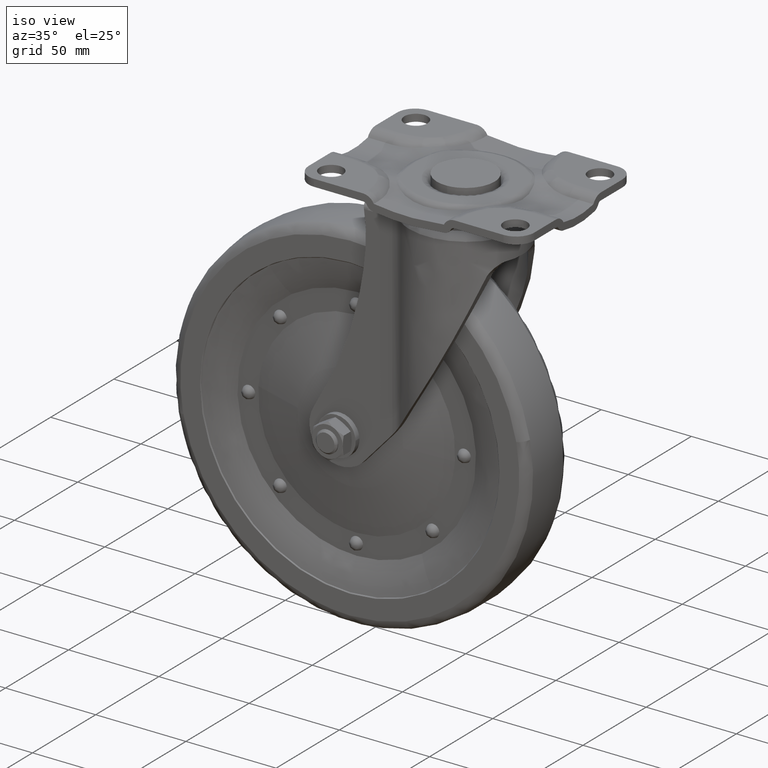
[diagram: clean part render]
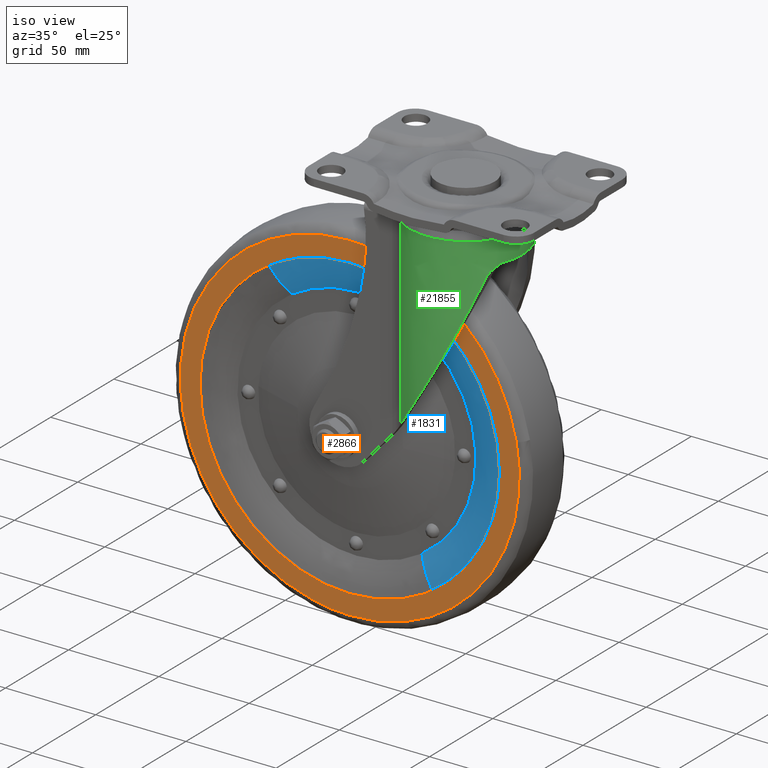
[diagram: same view with three faces highlighted in distinct colors, each labeled with its STEP entity id]
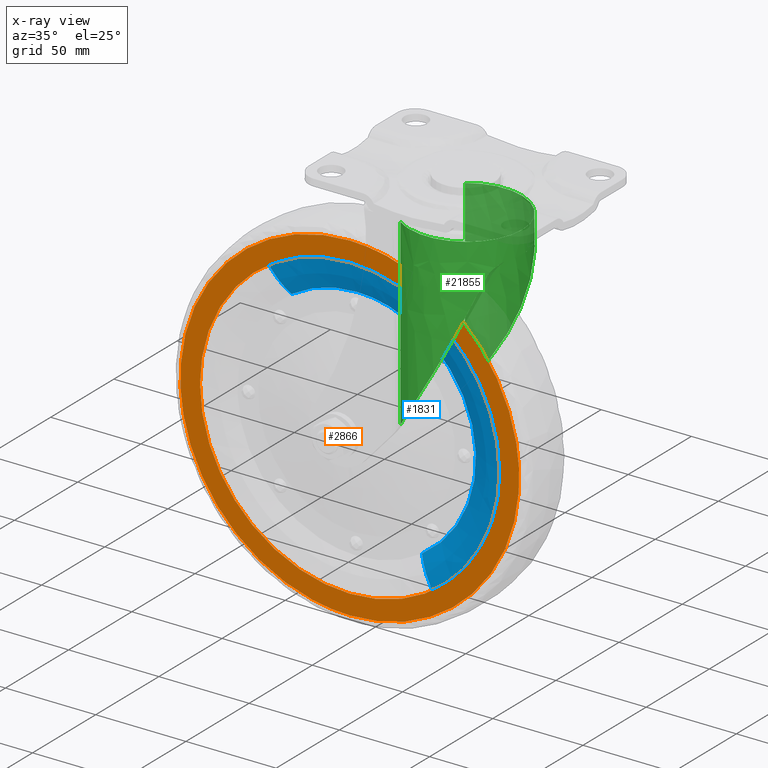
[diagram: x-ray of the same camera — body ghosted, the three highlighted faces saturated]
A machine part, iso view with three faces highlighted in distinct colors.
The next image is the same camera in x-ray (body ghosted, the three faces saturated) — at least one of them is partly hidden behind the body in this view.
Their STEP definitions:

[orange] entity #2866 — the highlighted face is a freeform B-spline surface patch.
#2141=CARTESIAN_POINT('',(29.999999987765751,-16.0,-135.729232999999990));
#2142=VERTEX_POINT('',#2141);
#2156=CARTESIAN_POINT('',(-53.0,-16.0,-52.729233000000001));
#2157=VERTEX_POINT('',#2156);
#2158=CARTESIAN_POINT('',(29.999999987765751,-16.0,-135.729232999999990));
#2159=CARTESIAN_POINT('',(29.999999993882902,-16.000000000000004,-52.729232999999979));
#2160=CARTESIAN_POINT('',(-53.0,-16.0,-52.729233000000001));
#2168=(BOUNDED_CURVE()B_SPLINE_CURVE(2,(#2158,#2159,#2160),.UNSPECIFIED.,.F.,.U.)B_SPLINE_CURVE_WITH_KNOTS((3,3),(0.250000000000000,0.500000000000000),.UNSPECIFIED.)CURVE()GEOMETRIC_REPRESENTATION_ITEM()RATIONAL_B_SPLINE_CURVE((1.0,0.707106781186547,1.0))REPRESENTATION_ITEM(''));
#2169=EDGE_CURVE('',#2142,#2157,#2168,.T.);
#2171=CARTESIAN_POINT('',(-135.999999987765790,-16.0,-135.729232999999990));
#2172=VERTEX_POINT('',#2171);
#2173=CARTESIAN_POINT('',(-53.0,-16.0,-52.729233000000001));
#2174=CARTESIAN_POINT('',(-135.999999993882940,-16.000000000000004,-52.729233000000008));
#2175=CARTESIAN_POINT('',(-135.999999987765790,-16.000000000000011,-135.729233000000110));
#2183=(BOUNDED_CURVE()B_SPLINE_CURVE(2,(#2173,#2174,#2175),.UNSPECIFIED.,.F.,.U.)B_SPLINE_CURVE_WITH_KNOTS((3,3),(0.500000000000000,0.750000000000000),.UNSPECIFIED.)CURVE()GEOMETRIC_REPRESENTATION_ITEM()RATIONAL_B_SPLINE_CURVE((1.0,0.707106781186547,1.0))REPRESENTATION_ITEM(''));
#2184=EDGE_CURVE('',#2157,#2172,#2183,.T.);
#2237=CARTESIAN_POINT('',(-53.0,-16.0,-218.729232999999990));
#2238=VERTEX_POINT('',#2237);
#2239=CARTESIAN_POINT('',(-135.999999987765730,-16.000000000000004,-135.729233000000020));
#2240=CARTESIAN_POINT('',(-135.999999993882820,-15.999999999999998,-218.729233000000050));
#2241=CARTESIAN_POINT('',(-53.0,-16.0,-218.729232999999990));
#2249=(BOUNDED_CURVE()B_SPLINE_CURVE(2,(#2239,#2240,#2241),.UNSPECIFIED.,.F.,.U.)B_SPLINE_CURVE_WITH_KNOTS((3,3),(0.750000000000000,1.0),.UNSPECIFIED.)CURVE()GEOMETRIC_REPRESENTATION_ITEM()RATIONAL_B_SPLINE_CURVE((1.000000000000000,0.707106781186548,1.0))REPRESENTATION_ITEM(''));
#2250=EDGE_CURVE('',#2172,#2238,#2249,.T.);
#2252=CARTESIAN_POINT('',(-53.0,-16.0,-218.729232999999990));
#2253=CARTESIAN_POINT('',(29.999999993882852,-15.999999999999998,-218.729233000000050));
#2254=CARTESIAN_POINT('',(29.999999987765747,-16.000000000000004,-135.729233000000020));
#2262=(BOUNDED_CURVE()B_SPLINE_CURVE(2,(#2252,#2253,#2254),.UNSPECIFIED.,.F.,.U.)B_SPLINE_CURVE_WITH_KNOTS((3,3),(0.0,0.250000000000000),.UNSPECIFIED.)CURVE()GEOMETRIC_REPRESENTATION_ITEM()RATIONAL_B_SPLINE_CURVE((1.0,0.707106781186548,1.000000000000000))REPRESENTATION_ITEM(''));
#2263=EDGE_CURVE('',#2238,#2142,#2262,.T.);
#2789=CARTESIAN_POINT('',(-156.260109342096910,-16.0,-32.460969741449127));
#2790=CARTESIAN_POINT('',(-156.260109342096910,-16.0,-238.997501295137310));
#2791=CARTESIAN_POINT('',(50.260114378285621,-16.0,-32.460969741449127));
#2792=CARTESIAN_POINT('',(50.260114378285621,-16.0,-238.997501295137310));
#2793=B_SPLINE_SURFACE_WITH_KNOTS('',1,1,((#2789,#2791),(#2790,#2792)),.UNSPECIFIED.,.F.,.F.,.U.,(2,2),(2,2),(0.0,206.536531553688090),(0.0,206.520223720382490),.UNSPECIFIED.);
#2794=CARTESIAN_POINT('',(-53.0,-15.999999999999959,-229.618008000000200));
#2795=VERTEX_POINT('',#2794);
#2796=CARTESIAN_POINT('',(39.225746698344203,-15.999999999999970,-118.136230909207600));
#2797=VERTEX_POINT('',#2796);
#2798=CARTESIAN_POINT('',(-53.0,-15.999999999999959,-229.618008000000200));
#2799=CARTESIAN_POINT('',(40.888775012188987,-15.999999999999970,-229.618007997674990));
#2800=CARTESIAN_POINT('',(40.888775026922737,-15.999999999999970,-135.729232994864300));
#2801=CARTESIAN_POINT('',(40.888775028315493,-15.999999999999975,-126.854130721343780));
#2802=CARTESIAN_POINT('',(39.225746698344203,-15.999999999999972,-118.136230909207650));
#2810=(BOUNDED_CURVE()B_SPLINE_CURVE(2,(#2798,#2799,#2800,#2801,#2802),.UNSPECIFIED.,.F.,.U.)B_SPLINE_CURVE_WITH_KNOTS((3,2,3),(0.0,0.250000000000000,0.282161366261022),.UNSPECIFIED.)CURVE()GEOMETRIC_REPRESENTATION_ITEM()RATIONAL_B_SPLINE_CURVE((1.0,0.707106781186548,1.0,0.962320615657484,0.934335795157604))REPRESENTATION_ITEM(''));
#2811=EDGE_CURVE('',#2795,#2797,#2810,.T.);
#2812=ORIENTED_EDGE('',*,*,#2811,.T.);
#2813=CARTESIAN_POINT('',(-53.0,-16.0,-41.840457999999813));
#2814=VERTEX_POINT('',#2813);
#2815=CARTESIAN_POINT('',(39.225746698344203,-15.999999999999972,-118.136230909207650));
#2816=CARTESIAN_POINT('',(24.671549613246064,-15.999999999999988,-41.840457997189226));
#2817=CARTESIAN_POINT('',(-53.0,-16.0,-41.840457999999813));
#2825=(BOUNDED_CURVE()B_SPLINE_CURVE(2,(#2815,#2816,#2817),.UNSPECIFIED.,.F.,.U.)B_SPLINE_CURVE_WITH_KNOTS((3,3),(0.282161366261022,0.500000000000000),.UNSPECIFIED.)CURVE()GEOMETRIC_REPRESENTATION_ITEM()RATIONAL_B_SPLINE_CURVE((0.934335795157604,0.744786165529064,1.0))REPRESENTATION_ITEM(''));
#2826=EDGE_CURVE('',#2797,#2814,#2825,.T.);
#2827=ORIENTED_EDGE('',*,*,#2826,.T.);
#2828=CARTESIAN_POINT('',(-145.225746698344210,-15.999999999999970,-153.322235090792300));
#2829=VERTEX_POINT('',#2828);
#2830=CARTESIAN_POINT('',(-53.0,-16.0,-41.840457999999813));
#2831=CARTESIAN_POINT('',(-146.888775012188940,-15.999999999999986,-41.840458002324965));
#2832=CARTESIAN_POINT('',(-146.888775026922700,-15.999999999999980,-135.729233005135710));
#2833=CARTESIAN_POINT('',(-146.888775028315450,-15.999999999999973,-144.604335278656120));
#2834=CARTESIAN_POINT('',(-145.225746698344210,-15.999999999999970,-153.322235090792330));
#2842=(BOUNDED_CURVE()B_SPLINE_CURVE(2,(#2830,#2831,#2832,#2833,#2834),.UNSPECIFIED.,.F.,.U.)B_SPLINE_CURVE_WITH_KNOTS((3,2,3),(0.500000000000000,0.750000000000000,0.782161366261022),.UNSPECIFIED.)CURVE()GEOMETRIC_REPRESENTATION_ITEM()RATIONAL_B_SPLINE_CURVE((1.0,0.707106781186548,1.0,0.962320615657484,0.934335795157604))REPRESENTATION_ITEM(''));
#2843=EDGE_CURVE('',#2814,#2829,#2842,.T.);
#2844=ORIENTED_EDGE('',*,*,#2843,.T.);
#2845=CARTESIAN_POINT('',(-145.225746698344210,-15.999999999999970,-153.322235090792330));
#2846=CARTESIAN_POINT('',(-130.671549613246100,-15.999999999999964,-229.618008002810830));
#2847=CARTESIAN_POINT('',(-53.0,-15.999999999999959,-229.618008000000200));
#2855=(BOUNDED_CURVE()B_SPLINE_CURVE(2,(#2845,#2846,#2847),.UNSPECIFIED.,.F.,.U.)B_SPLINE_CURVE_WITH_KNOTS((3,3),(0.782161366261022,1.0),.UNSPECIFIED.)CURVE()GEOMETRIC_REPRESENTATION_ITEM()RATIONAL_B_SPLINE_CURVE((0.934335795157604,0.744786165529064,1.0))REPRESENTATION_ITEM(''));
#2856=EDGE_CURVE('',#2829,#2795,#2855,.T.);
#2857=ORIENTED_EDGE('',*,*,#2856,.T.);
#2858=EDGE_LOOP('',(#2812,#2827,#2844,#2857));
#2859=FACE_OUTER_BOUND('',#2858,.T.);
#2860=ORIENTED_EDGE('',*,*,#2184,.F.);
#2861=ORIENTED_EDGE('',*,*,#2169,.F.);
#2862=ORIENTED_EDGE('',*,*,#2263,.F.);
#2863=ORIENTED_EDGE('',*,*,#2250,.F.);
#2864=EDGE_LOOP('',(#2860,#2861,#2862,#2863));
#2865=FACE_BOUND('',#2864,.T.);
#2866=ADVANCED_FACE('',(#2859,#2865),#2793,.T.);

[blue] entity #1831 — the highlighted face is a freeform B-spline surface patch.
#1403=CARTESIAN_POINT('',(-16.883060482848801,-10.500000000488191,-191.090255211322300));
#1404=VERTEX_POINT('',#1403);
#1418=CARTESIAN_POINT('',(-53.0,-10.500000000000000,-69.628732999999997));
#1419=VERTEX_POINT('',#1418);
#1420=CARTESIAN_POINT('',(-16.883060482848801,-10.500000000488191,-191.090255211322300));
#1421=CARTESIAN_POINT('',(-14.295893335492490,-10.500000000484739,-189.402585787430810));
#1422=CARTESIAN_POINT('',(-9.711550189356293,-10.500000000477140,-185.930599746245800));
#1423=CARTESIAN_POINT('',(-3.415545765390144,-10.500000000460849,-179.723098252272990));
#1424=CARTESIAN_POINT('',(2.433085217757083,-10.500000000439830,-172.223042368542110));
#1425=CARTESIAN_POINT('',(7.003315996075366,-10.500000000414330,-163.996032057710210));
#1426=CARTESIAN_POINT('',(10.271632505231000,-10.500000000386320,-155.426323502500200));
#1427=CARTESIAN_POINT('',(12.044561114156190,-10.500000000361689,-148.234531981813490));
#1428=CARTESIAN_POINT('',(13.044050193726889,-10.500000000334900,-140.680602007588500));
#1429=CARTESIAN_POINT('',(13.239785672960201,-10.500000000304921,-132.503289738344390));
#1430=CARTESIAN_POINT('',(12.289656787610260,-10.500000000273831,-124.370436119956810));
#1431=CARTESIAN_POINT('',(10.303118185413330,-10.500000000241650,-116.216102636709390));
#1432=CARTESIAN_POINT('',(7.675452905612581,-10.500000000212260,-109.053425288715200));
#1433=CARTESIAN_POINT('',(3.445397885427771,-10.500000000177209,-100.913810548366700));
#1434=CARTESIAN_POINT('',(-1.695309853666389,-10.500000000146059,-93.705090165029489));
#1435=CARTESIAN_POINT('',(-7.175670970250584,-10.500000000116300,-87.935669525866942));
#1436=CARTESIAN_POINT('',(-13.282683744497630,-10.500000000093049,-82.675849684003978));
#1437=CARTESIAN_POINT('',(-21.109858388971730,-10.500000000062981,-77.453837666754367));
#1438=CARTESIAN_POINT('',(-30.331973272559171,-10.500000000039069,-73.384665855382607));
#1439=CARTESIAN_POINT('',(-41.085831134377138,-10.500000000015900,-70.404188461576354));
#1440=CARTESIAN_POINT('',(-48.256203109829599,-10.500000000005221,-69.627839136742224));
#1441=CARTESIAN_POINT('',(-53.0,-10.500000000000000,-69.628732999999997));
#1442=B_SPLINE_CURVE_WITH_KNOTS('',3,(#1420,#1421,#1422,#1423,#1424,#1425,#1426,#1427,#1428,#1429,#1430,#1431,#1432,#1433,#1434,#1435,#1436,#1437,#1438,#1439,#1440,#1441),.UNSPECIFIED.,.F.,.U.,(4,1,1,1,1,1,1,1,1,1,1,1,1,1,1,1,1,1,1,4),(0.000000268252762,9.266858861553970,17.209927977640351,26.476791143593260,37.729510923627032,45.341609818290713,53.946499584197937,59.903874102659763,68.177718326411878,78.437418652294525,84.394635459403602,93.330577293487195,101.273641577468100,111.864399715827300,119.807468497358200,125.102846783829800,136.024563524854100,147.939095825421500,155.220281740602590,169.451426680902390),.UNSPECIFIED.);
#1443=EDGE_CURVE('',#1404,#1419,#1442,.T.);
#1445=CARTESIAN_POINT('',(-89.116939517151209,-10.500000000488191,-80.368210788677686));
#1446=VERTEX_POINT('',#1445);
#1447=CARTESIAN_POINT('',(-53.0,-10.500000000000000,-69.628732999999997));
#1448=CARTESIAN_POINT('',(-72.655177352478418,-10.500000000244095,-69.628732999625981));
#1449=CARTESIAN_POINT('',(-89.116939517151209,-10.500000000488189,-80.368210788677686));
#1457=(BOUNDED_CURVE()B_SPLINE_CURVE(2,(#1447,#1448,#1449),.UNSPECIFIED.,.F.,.U.)B_SPLINE_CURVE_WITH_KNOTS((3,3),(0.500000000000000,0.593601467030247),.UNSPECIFIED.)CURVE()GEOMETRIC_REPRESENTATION_ITEM()RATIONAL_B_SPLINE_CURVE((1.0,0.890339060143398,0.862793519058746))REPRESENTATION_ITEM(''));
#1458=EDGE_CURVE('',#1419,#1446,#1457,.T.);
#1725=CARTESIAN_POINT('',(-9.408239121956996,-15.569635847041310,-206.812674728074770));
#1726=CARTESIAN_POINT('',(-8.438089456810506,-15.569635847041313,-206.179759449804750));
#1727=CARTESIAN_POINT('',(62.353622326473094,-15.569635847041306,-159.996002889150870));
#1728=CARTESIAN_POINT('',(16.810196107811997,-15.569635847041305,-90.185806781338883));
#1729=CARTESIAN_POINT('',(-28.733230110849181,-15.569635847041306,-20.375610673526896));
#1730=CARTESIAN_POINT('',(-99.524941894448631,-15.569635847041308,-66.559367234386912));
#1731=CARTESIAN_POINT('',(-100.495091559903760,-15.569635847041308,-67.192282512858270));
#1732=CARTESIAN_POINT('',(-14.442448131109963,-14.881530613194037,-198.603579808733630));
#1733=CARTESIAN_POINT('',(-13.584336522837811,-14.881530613194045,-198.043756961962690));
#1734=CARTESIAN_POINT('',(49.031970870845349,-14.881530613194039,-157.193546894294680));
#1735=CARTESIAN_POINT('',(8.748142382570078,-14.881530613194037,-95.445404511724718));
#1736=CARTESIAN_POINT('',(-31.535686105705267,-14.881530613194039,-33.697262129154645));
#1737=CARTESIAN_POINT('',(-94.151993499667810,-14.881530613194034,-74.547472197004865));
#1738=CARTESIAN_POINT('',(-95.010105108212940,-14.881530613194036,-75.107295043953982));
#1739=CARTESIAN_POINT('',(-18.821115197945918,-10.082133639520013,-191.463452430928070));
#1740=CARTESIAN_POINT('',(-18.060452334645635,-10.082133639520013,-190.967204104415830));
#1741=CARTESIAN_POINT('',(37.445031115549163,-10.082133639520011,-154.756019618684380));
#1742=CARTESIAN_POINT('',(1.735908867116841,-10.082133639520015,-100.020110751567690));
#1743=CARTESIAN_POINT('',(-33.973213381315546,-10.082133639520011,-45.284201884450823));
#1744=CARTESIAN_POINT('',(-89.478696831758029,-10.082133639520013,-81.495386370343738));
#1745=CARTESIAN_POINT('',(-90.239359695300294,-10.082133639520013,-81.991634697013836));
#1753=(BOUNDED_SURFACE()B_SPLINE_SURFACE(2,2,((#1725,#1732,#1739),(#1726,#1733,#1740),(#1727,#1734,#1741),(#1728,#1735,#1742),(#1729,#1736,#1743),(#1730,#1737,#1744),(#1731,#1738,#1745)),.UNSPECIFIED.,.F.,.F.,.U.)B_SPLINE_SURFACE_WITH_KNOTS((3,1,2,1,3),(3,3),(0.0,2.762064421441989,140.865285506797900,278.968506592153690,281.730571014490010),(0.0,19.062550185073370),.UNSPECIFIED.)GEOMETRIC_REPRESENTATION_ITEM()RATIONAL_B_SPLINE_SURFACE(((0.960211598127607,0.936166319006416,0.960346618138246),(0.954651944211034,0.930745887976237,0.954786182451766),(0.671109594439084,0.654303905411099,0.671203962414598),(0.949092290294460,0.925325456946059,0.949225746765286),(0.671109594439084,0.654303905411099,0.671203962414598),(0.954651944212834,0.930745887977992,0.954786182453566),(0.960211598131207,0.936166319009926,0.960346618141847)))REPRESENTATION_ITEM('')SURFACE());
#1754=CARTESIAN_POINT('',(-7.922466394535142,-15.499999999949139,-204.825296302889090));
#1755=VERTEX_POINT('',#1754);
#1756=CARTESIAN_POINT('',(29.499999999901888,-15.500000000356000,-135.729232999999990));
#1757=VERTEX_POINT('',#1756);
#1758=CARTESIAN_POINT('',(-7.922466394535142,-15.499999999949136,-204.825296302889090));
#1759=CARTESIAN_POINT('',(29.499999999608047,-15.500000000147727,-180.411278979199520));
#1760=CARTESIAN_POINT('',(29.499999999901888,-15.500000000355998,-135.729232999999970));
#1768=(BOUNDED_CURVE()B_SPLINE_CURVE(2,(#1758,#1759,#1760),.UNSPECIFIED.,.F.,.U.)B_SPLINE_CURVE_WITH_KNOTS((3,3),(0.093601467029690,0.249999999999355),.UNSPECIFIED.)CURVE()GEOMETRIC_REPRESENTATION_ITEM()RATIONAL_B_SPLINE_CURVE((0.862793519059074,0.816767721042686,0.999999999998490))REPRESENTATION_ITEM(''));
#1769=EDGE_CURVE('',#1755,#1757,#1768,.T.);
#1770=ORIENTED_EDGE('',*,*,#1769,.T.);
#1771=CARTESIAN_POINT('',(-53.0,-15.500000000000000,-53.229233000000001));
#1772=VERTEX_POINT('',#1771);
#1773=CARTESIAN_POINT('',(29.499999999901910,-15.500000000356007,-135.729233000000050));
#1774=CARTESIAN_POINT('',(29.500000000304844,-15.500000000186937,-53.229232999931099));
#1775=CARTESIAN_POINT('',(-53.0,-15.500000000000000,-53.229233000000001));
#1783=(BOUNDED_CURVE()B_SPLINE_CURVE(2,(#1773,#1774,#1775),.UNSPECIFIED.,.F.,.U.)B_SPLINE_CURVE_WITH_KNOTS((3,3),(0.249999999999355,0.500000000000000),.UNSPECIFIED.)CURVE()GEOMETRIC_REPRESENTATION_ITEM()RATIONAL_B_SPLINE_CURVE((1.000000000001510,0.707106781185793,1.0))REPRESENTATION_ITEM(''));
#1784=EDGE_CURVE('',#1757,#1772,#1783,.T.);
#1785=ORIENTED_EDGE('',*,*,#1784,.T.);
#1786=CARTESIAN_POINT('',(-98.077533605464851,-15.499999999949139,-66.633169697110986));
#1787=VERTEX_POINT('',#1786);
#1788=CARTESIAN_POINT('',(-53.0,-15.500000000000000,-53.229233000000001));
#1789=CARTESIAN_POINT('',(-77.531616728141202,-15.499999999974566,-53.229233000231837));
#1790=CARTESIAN_POINT('',(-98.077533605464851,-15.499999999949136,-66.633169697110986));
#1798=(BOUNDED_CURVE()B_SPLINE_CURVE(2,(#1788,#1789,#1790),.UNSPECIFIED.,.F.,.U.)B_SPLINE_CURVE_WITH_KNOTS((3,3),(0.500000000000000,0.593601467029690),.UNSPECIFIED.)CURVE()GEOMETRIC_REPRESENTATION_ITEM()RATIONAL_B_SPLINE_CURVE((1.0,0.890339060144051,0.862793519059074))REPRESENTATION_ITEM(''));
#1799=EDGE_CURVE('',#1772,#1787,#1798,.T.);
#1800=ORIENTED_EDGE('',*,*,#1799,.T.);
#1801=CARTESIAN_POINT('',(-98.077533605464851,-15.499999999949139,-66.633169697110986));
#1802=CARTESIAN_POINT('',(-93.314185280361926,-14.699102309644276,-73.934558905663465));
#1803=CARTESIAN_POINT('',(-89.116939517151209,-10.500000000488189,-80.368210788677686));
#1811=(BOUNDED_CURVE()B_SPLINE_CURVE(2,(#1801,#1802,#1803),.UNSPECIFIED.,.F.,.U.)B_SPLINE_CURVE_WITH_KNOTS((3,3),(-1.394959711226777,-0.602600248514036),.UNSPECIFIED.)CURVE()GEOMETRIC_REPRESENTATION_ITEM()RATIONAL_B_SPLINE_CURVE((0.947031941394556,0.927391866408569,0.947153276741674))REPRESENTATION_ITEM(''));
#1812=EDGE_CURVE('',#1787,#1446,#1811,.T.);
#1813=ORIENTED_EDGE('',*,*,#1812,.T.);
#1814=ORIENTED_EDGE('',*,*,#1458,.F.);
#1815=ORIENTED_EDGE('',*,*,#1443,.F.);
#1816=CARTESIAN_POINT('',(-7.922466394535142,-15.499999999949136,-204.825296302889030));
#1817=CARTESIAN_POINT('',(-12.685814719638078,-14.699102309644289,-197.523907094336610));
#1818=CARTESIAN_POINT('',(-16.883060482848798,-10.500000000488193,-191.090255211322360));
#1826=(BOUNDED_CURVE()B_SPLINE_CURVE(2,(#1816,#1817,#1818),.UNSPECIFIED.,.F.,.U.)B_SPLINE_CURVE_WITH_KNOTS((3,3),(-1.394959711226780,-0.602600248514037),.UNSPECIFIED.)CURVE()GEOMETRIC_REPRESENTATION_ITEM()RATIONAL_B_SPLINE_CURVE((0.947031941394556,0.927391866408569,0.947153276741673))REPRESENTATION_ITEM(''));
#1827=EDGE_CURVE('',#1755,#1404,#1826,.T.);
#1828=ORIENTED_EDGE('',*,*,#1827,.F.);
#1829=EDGE_LOOP('',(#1770,#1785,#1800,#1813,#1814,#1815,#1828));
#1830=FACE_OUTER_BOUND('',#1829,.T.);
#1831=ADVANCED_FACE('',(#1830),#1753,.T.);

[green] entity #21855 — the highlighted face is a freeform B-spline surface patch.
#20027=CARTESIAN_POINT('',(-18.236554349845449,-25.500011479313748,-19.576584000000050));
#20028=VERTEX_POINT('',#20027);
#20029=CARTESIAN_POINT('',(-18.236554349845449,-25.500011479313748,-121.115201933756790));
#20030=VERTEX_POINT('',#20029);
#20031=CARTESIAN_POINT('',(-18.236554349845449,-25.500011479313748,-19.576584000000050));
#20032=CARTESIAN_POINT('',(-18.236554349845449,-25.500011479313748,-121.115201933756790));
#20033=QUASI_UNIFORM_CURVE('',1,(#20031,#20032),.UNSPECIFIED.,.F.,.U.);
#20034=EDGE_CURVE('',#20028,#20030,#20033,.T.);
#20103=CARTESIAN_POINT('',(-18.236554349509550,25.500011479553951,-19.576584000000199));
#20104=VERTEX_POINT('',#20103);
#20118=CARTESIAN_POINT('',(-18.236554349509600,25.500011479553951,-121.115201933317810));
#20119=VERTEX_POINT('',#20118);
#20120=CARTESIAN_POINT('',(-18.236554349509600,25.500011479553951,-121.115201933317810));
#20121=CARTESIAN_POINT('',(-18.236554349509550,25.500011479553951,-19.576584000000199));
#20122=QUASI_UNIFORM_CURVE('',1,(#20120,#20121),.UNSPECIFIED.,.F.,.U.);
#20123=EDGE_CURVE('',#20119,#20104,#20122,.T.);
#21013=CARTESIAN_POINT('',(28.782003367134351,12.426535405102600,-32.508233000000153));
#21014=VERTEX_POINT('',#21013);
#21015=CARTESIAN_POINT('',(28.782003367134351,-12.426535405102600,-32.508233000000153));
#21016=VERTEX_POINT('',#21015);
#21022=CARTESIAN_POINT('',(28.782003367134330,-12.426535405102600,-32.508233000000153));
#21023=CARTESIAN_POINT('',(34.147119207215027,-5.204170E-015,-32.508233000000153));
#21024=CARTESIAN_POINT('',(28.782003367134330,12.426535405102589,-32.508233000000153));
#21032=(BOUNDED_CURVE()B_SPLINE_CURVE(2,(#21022,#21023,#21024),.UNSPECIFIED.,.F.,.U.)CURVE()GEOMETRIC_REPRESENTATION_ITEM()QUASI_UNIFORM_CURVE()RATIONAL_B_SPLINE_CURVE((1.0,0.918086231806518,1.0))REPRESENTATION_ITEM(''));
#21033=EDGE_CURVE('',#21016,#21014,#21032,.T.);
#21052=CARTESIAN_POINT('',(24.312904290998748,-19.791543268192449,-39.846491219534499));
#21053=VERTEX_POINT('',#21052);
#21060=CARTESIAN_POINT('',(24.312904290998748,19.791543268192449,-39.846491219534499));
#21061=VERTEX_POINT('',#21060);
#21067=CARTESIAN_POINT('',(24.312904290998748,19.791543268192449,-39.846491219534499));
#21068=CARTESIAN_POINT('',(24.382410779458748,19.706164040827790,-39.555385855604698));
#21069=CARTESIAN_POINT('',(24.460351308841862,19.609498503189801,-39.270406642795180));
#21070=CARTESIAN_POINT('',(24.607817788734639,19.423888273613571,-38.790058617710727));
#21071=CARTESIAN_POINT('',(24.673639129492638,19.340286023920861,-38.591868060757562));
#21072=CARTESIAN_POINT('',(24.778084619544419,19.206041289466071,-38.299138695811280));
#21073=CARTESIAN_POINT('',(24.813852328230020,19.159818480557242,-38.202322075022657));
#21074=CARTESIAN_POINT('',(24.887239946841540,19.064396323046090,-38.010203460614363));
#21075=CARTESIAN_POINT('',(24.924789375197641,19.015287567543432,-37.915094797007093));
#21076=CARTESIAN_POINT('',(25.115760597310331,18.763919345710178,-37.446266492897543));
#21077=CARTESIAN_POINT('',(25.279591552386730,18.543235871488921,-37.090579033652681));
#21078=CARTESIAN_POINT('',(25.624036156370639,18.064278178873359,-36.414152288996952));
#21079=CARTESIAN_POINT('',(25.804665925507301,17.805985907141441,-36.093433849936233));
#21080=CARTESIAN_POINT('',(26.038090136567241,17.459874815207922,-35.712765885744133));
#21081=CARTESIAN_POINT('',(26.085218980274899,17.389395872577168,-35.637551261195242));
#21082=CARTESIAN_POINT('',(26.179869149089761,17.246570553716978,-35.489591267380739));
#21083=CARTESIAN_POINT('',(26.322277712220369,17.029771784630530,-35.271585882191353));
#21084=CARTESIAN_POINT('',(26.465674315868519,16.805446246402980,-35.064914690369172));
#21085=CARTESIAN_POINT('',(26.753032531531350,16.347102464392091,-34.665597006421237));
#21086=CARTESIAN_POINT('',(26.945340560454898,16.028631656188921,-34.418049274403813));
#21087=CARTESIAN_POINT('',(27.327947319805489,15.367228878910680,-33.955574137128089));
#21088=CARTESIAN_POINT('',(27.518253032874899,15.024290920237950,-33.740660753861491));
#21089=CARTESIAN_POINT('',(27.799967544752420,14.492224184995440,-33.439989436466291));
#21090=CARTESIAN_POINT('',(27.893251491152959,14.311922532818331,-33.343388524998673));
#21091=CARTESIAN_POINT('',(28.078234429027201,13.945514020513549,-33.157033664633403));
#21092=CARTESIAN_POINT('',(28.170014922683059,13.759217350978791,-33.067212034703822));
#21093=CARTESIAN_POINT('',(28.440290458559581,13.196424307125421,-32.809509437997413));
#21094=CARTESIAN_POINT('',(28.614465261142939,12.814582601690660,-32.652573805857671));
#21095=CARTESIAN_POINT('',(28.782003367134351,12.426535405102600,-32.508233000000153));
#21096=B_SPLINE_CURVE_WITH_KNOTS('',3,(#21067,#21068,#21069,#21070,#21071,#21072,#21073,#21074,#21075,#21076,#21077,#21078,#21079,#21080,#21081,#21082,#21083,#21084,#21085,#21086,#21087,#21088,#21089,#21090,#21091,#21092,#21093,#21094,#21095),.UNSPECIFIED.,.F.,.U.,(4,2,2,2,2,2,2,2,1,2,2,2,2,2,4),(0.864167057343157,0.874999999999991,0.882812499999992,0.886718749999992,0.890624999999992,0.906249999999993,0.921874999999994,0.925781249999995,0.929687499999995,0.937499999999996,0.953124999999997,0.968749999999998,0.976562499999998,0.984374999999999,1.0),.UNSPECIFIED.);
#21097=EDGE_CURVE('',#21061,#21014,#21096,.T.);
#21100=CARTESIAN_POINT('',(28.782003367134351,-12.426535405102600,-32.508233000000153));
#21101=CARTESIAN_POINT('',(28.614724755488520,-12.813981423632670,-32.652350135295052));
#21102=CARTESIAN_POINT('',(28.441061024751949,-13.194705823024840,-32.808829062434960));
#21103=CARTESIAN_POINT('',(28.172035964134139,-13.755064588643110,-33.065257683887232));
#21104=CARTESIAN_POINT('',(28.080941163601281,-13.940061042670701,-33.154359840143172));
#21105=CARTESIAN_POINT('',(27.896113658580600,-14.306341024531809,-33.340452646754727));
#21106=CARTESIAN_POINT('',(27.802312005493320,-14.487734362438809,-33.437530576685297));
#21107=CARTESIAN_POINT('',(27.519762315423499,-15.021560166477780,-33.738962338776197));
#21108=CARTESIAN_POINT('',(27.329107089778471,-15.365171609444911,-33.954227272981747));
#21109=CARTESIAN_POINT('',(26.946295579983520,-16.027031065254299,-34.416837672103952));
#21110=CARTESIAN_POINT('',(26.754132785597189,-16.345284650916099,-34.664170781814143));
#21111=CARTESIAN_POINT('',(26.371816577726761,-16.955212027847629,-35.195235280351881));
#21112=CARTESIAN_POINT('',(26.181652091175991,-17.246896493034729,-35.478944087873963));
#21113=CARTESIAN_POINT('',(25.901066759243630,-17.663099339015972,-35.936073801637292));
#21114=CARTESIAN_POINT('',(25.809027629254629,-17.797225194489869,-36.092594151732342));
#21115=CARTESIAN_POINT('',(25.628939616884651,-18.055596639280111,-36.413389228949647));
#21116=CARTESIAN_POINT('',(25.540813989242640,-18.179956008128869,-36.577787766371287));
#21117=CARTESIAN_POINT('',(25.283039497755080,-18.538524084059329,-37.083402954294989));
#21118=CARTESIAN_POINT('',(25.119966834491962,-18.758266114509599,-37.436999046232209));
#21119=CARTESIAN_POINT('',(24.892267655358491,-19.058148087196699,-37.994424067583857));
#21120=CARTESIAN_POINT('',(24.819191861942489,-19.153143783814080,-38.184746480186412));
#21121=CARTESIAN_POINT('',(24.714353938438901,-19.287980049030079,-38.477388867175151));
#21122=CARTESIAN_POINT('',(24.680141303765240,-19.331728618596610,-38.576322939769312));
#21123=CARTESIAN_POINT('',(24.613734488403900,-19.416209010898768,-38.775664041928657));
#21124=CARTESIAN_POINT('',(24.581578342416869,-19.456893702552151,-38.875940492494003));
#21125=CARTESIAN_POINT('',(24.462634454980819,-19.606673966749860,-39.261885609557318));
#21126=CARTESIAN_POINT('',(24.383278034713591,-19.705100797557328,-39.551760809455281));
#21127=CARTESIAN_POINT('',(24.312904290998748,-19.791543268192449,-39.846491219534499));
#21128=B_SPLINE_CURVE_WITH_KNOTS('',3,(#21100,#21101,#21102,#21103,#21104,#21105,#21106,#21107,#21108,#21109,#21110,#21111,#21112,#21113,#21114,#21115,#21116,#21117,#21118,#21119,#21120,#21121,#21122,#21123,#21124,#21125,#21126,#21127),.UNSPECIFIED.,.F.,.U.,(4,2,2,2,2,2,2,2,2,2,2,2,2,4),(0.0,0.015625000000002,0.023437500000003,0.031250000000004,0.046875000000006,0.062500000000008,0.078125000000010,0.085937500000011,0.093750000000012,0.109375000000013,0.117187500000014,0.121093750000014,0.125000000000015,0.136038103845731),.UNSPECIFIED.);
#21129=EDGE_CURVE('',#21016,#21053,#21128,.T.);
#21168=CARTESIAN_POINT('',(24.312904290998748,19.791543268192449,-39.846491219534499));
#21169=CARTESIAN_POINT('',(24.190877152410849,19.941443770295521,-40.225372704005459));
#21170=CARTESIAN_POINT('',(24.067821675123291,20.089773868352889,-40.604575467289642));
#21171=CARTESIAN_POINT('',(23.551147755450231,20.701097356253900,-42.184765444914262));
#21172=CARTESIAN_POINT('',(23.148252228854801,21.150433020325181,-43.388439779518372));
#21173=CARTESIAN_POINT('',(21.908362409824530,22.456334371195830,-47.006912122097162));
#21174=CARTESIAN_POINT('',(21.040205020473120,23.271097747690060,-49.429046577987187));
#21175=CARTESIAN_POINT('',(19.901433478380550,24.224848836646188,-52.466357649027891));
#21176=CARTESIAN_POINT('',(19.670997191560339,24.412338510717959,-53.074311500627367));
#21177=CARTESIAN_POINT('',(19.321279820742109,24.688708389373339,-53.986956056820233));
#21178=CARTESIAN_POINT('',(19.204030167400688,24.780020661721011,-54.291289962319922));
#21179=CARTESIAN_POINT('',(18.968169326913142,24.961024659196589,-54.900192970341287));
#21180=CARTESIAN_POINT('',(18.849541188260570,25.050728203395440,-55.204804369885231));
#21181=CARTESIAN_POINT('',(18.253695633058278,25.494667153414259,-56.726620841380502));
#21182=CARTESIAN_POINT('',(17.767832500323191,25.835599055785561,-57.941485093868700));
#21183=CARTESIAN_POINT('',(16.282586438904151,26.816175477975769,-61.578201364389912));
#21184=CARTESIAN_POINT('',(15.255561787282170,27.413768002296969,-63.992160881085937));
#21185=CARTESIAN_POINT('',(13.126922835985599,28.494398703917820,-68.798933865343997));
#21186=CARTESIAN_POINT('',(12.025310675281180,28.977418395230060,-71.191750993538037));
#21187=CARTESIAN_POINT('',(9.746126176346451,29.821333352214442,-75.956617370233232));
#21188=CARTESIAN_POINT('',(8.568558121505001,30.182247847216662,-78.328666058280334));
#21189=CARTESIAN_POINT('',(6.135494049075888,30.769205634685321,-83.052801955992791));
#21190=CARTESIAN_POINT('',(4.880005592282139,30.995308910046859,-85.404884523192408));
#21191=CARTESIAN_POINT('',(2.288363625343812,31.293562495766409,-90.090399462776986));
#21192=CARTESIAN_POINT('',(0.952223749125408,31.365838653738201,-92.423820982799569));
#21193=CARTESIAN_POINT('',(-1.115342939050598,31.337731150059870,-95.911493637130675));
#21194=CARTESIAN_POINT('',(-1.815100881789538,31.305527295573459,-97.071981182733168));
#21195=CARTESIAN_POINT('',(-2.703399691593498,31.233727503533490,-98.520229573298764));
#21196=CARTESIAN_POINT('',(-2.881739809086868,31.217787735629891,-98.809761415660461));
#21197=CARTESIAN_POINT('',(-3.239791718051440,31.182662643611678,-99.388596014958125));
#21198=CARTESIAN_POINT('',(-3.419376961196960,31.163488437025539,-99.677693206858692));
#21199=CARTESIAN_POINT('',(-3.959164377595087,31.101102799355210,-100.542995792025590));
#21200=CARTESIAN_POINT('',(-4.320654271781983,31.053005318618570,-101.117626368706790));
#21201=CARTESIAN_POINT('',(-5.409899394158670,30.888423537683039,-102.834747967933590));
#21202=CARTESIAN_POINT('',(-6.142433340293879,30.751682158752420,-103.970472395206700));
#21203=CARTESIAN_POINT('',(-7.619536308123633,30.419370916551340,-106.223495806102410));
#21204=CARTESIAN_POINT('',(-8.364106621738868,30.223812545311851,-107.340795966643400));
#21205=CARTESIAN_POINT('',(-9.864458216986588,29.767929143045329,-109.556466803128900));
#21206=CARTESIAN_POINT('',(-10.620241447954459,29.507621801350609,-110.654839316787300));
#21207=CARTESIAN_POINT('',(-11.761580922287401,29.062938013760789,-112.287694844897400));
#21208=CARTESIAN_POINT('',(-12.143303366689260,28.905658908016090,-112.829527979304100));
#21209=CARTESIAN_POINT('',(-12.717691594961240,28.655303057372151,-113.638519905578900));
#21210=CARTESIAN_POINT('',(-12.909536175116980,28.569403729286751,-113.907669777202900));
#21211=CARTESIAN_POINT('',(-13.292834677514540,28.393089014417779,-114.443347938864700));
#21212=CARTESIAN_POINT('',(-13.484392964759509,28.302630091600300,-114.710024110097290));
#21213=CARTESIAN_POINT('',(-14.441622708419890,27.838574825095360,-116.037536222664500));
#21214=CARTESIAN_POINT('',(-15.205632764862290,27.429774230940570,-117.080789552056600));
#21215=CARTESIAN_POINT('',(-16.727017272377129,26.529430612841839,-119.128043961283500));
#21216=CARTESIAN_POINT('',(-17.484401622649610,26.037919913616481,-120.132054828456110));
#21217=CARTESIAN_POINT('',(-18.236554349509600,25.500011479553951,-121.115201933317810));
#21218=B_SPLINE_CURVE_WITH_KNOTS('',3,(#21168,#21169,#21170,#21171,#21172,#21173,#21174,#21175,#21176,#21177,#21178,#21179,#21180,#21181,#21182,#21183,#21184,#21185,#21186,#21187,#21188,#21189,#21190,#21191,#21192,#21193,#21194,#21195,#21196,#21197,#21198,#21199,#21200,#21201,#21202,#21203,#21204,#21205,#21206,#21207,#21208,#21209,#21210,#21211,#21212,#21213,#21214,#21215,#21216,#21217),.UNSPECIFIED.,.F.,.U.,(4,2,2,2,2,2,2,2,2,2,2,2,2,2,2,2,2,2,2,2,2,2,2,2,4),(0.635686429039192,0.640624999999998,0.656249999999998,0.687499999999998,0.695312499999998,0.699218749999998,0.703124999999998,0.718749999999998,0.749999999999998,0.781249999999999,0.812499999999999,0.843749999999999,0.874999999999999,0.890624999999999,0.894531249999999,0.898437499999999,0.906249999999999,0.921874999999999,0.937499999999999,0.953125000000000,0.960937500000000,0.964843750000000,0.968750000000000,0.984375000000000,1.0),.UNSPECIFIED.);
#21219=EDGE_CURVE('',#21061,#20119,#21218,.T.);
#21715=CARTESIAN_POINT('',(-18.897817620482058,-25.013895921727130,-17.038118551656130));
#21716=CARTESIAN_POINT('',(-18.897817620482058,-25.013895921727130,-123.717129018309290));
#21717=CARTESIAN_POINT('',(4.157411546622117,-42.431954962258629,-17.038118551656126));
#21718=CARTESIAN_POINT('',(4.157411546622117,-42.431954962258629,-123.717129018309310));
#21719=CARTESIAN_POINT('',(23.393470660586210,-20.870266659827120,-17.038118551656130));
#21720=CARTESIAN_POINT('',(23.393470660586210,-20.870266659827120,-123.717129018309290));
#21721=CARTESIAN_POINT('',(42.629529774550292,0.691421642604384,-17.038118551656126));
#21722=CARTESIAN_POINT('',(42.629529774550292,0.691421642604384,-123.717129018309310));
#21723=CARTESIAN_POINT('',(22.704341158135509,21.617941450910472,-17.038118551656130));
#21724=CARTESIAN_POINT('',(22.704341158135509,21.617941450910472,-123.717129018309290));
#21725=CARTESIAN_POINT('',(2.779152541720726,42.544461259216575,-17.038118551656126));
#21726=CARTESIAN_POINT('',(2.779152541720726,42.544461259216575,-123.717129018309310));
#21727=CARTESIAN_POINT('',(-19.699080448920579,24.387880790813998,-17.038118551656130));
#21728=CARTESIAN_POINT('',(-19.699080448920579,24.387880790813998,-123.717129018309290));
#21736=(BOUNDED_SURFACE()B_SPLINE_SURFACE(1,2,((#21715,#21717,#21719,#21721,#21723,#21725,#21727),(#21716,#21718,#21720,#21722,#21724,#21726,#21728)),.UNSPECIFIED.,.F.,.F.,.U.)B_SPLINE_SURFACE_WITH_KNOTS((2,2),(3,2,2,3),(0.0,106.679010466653200),(0.0,48.975480619382949,97.950961238765899,146.926441858148910),.UNSPECIFIED.)GEOMETRIC_REPRESENTATION_ITEM()RATIONAL_B_SPLINE_SURFACE(((1.0,0.735309008059829,1.0,0.735309008059829,1.0,0.735309008059829,1.0),(1.0,0.735309008059829,1.0,0.735309008059829,1.0,0.735309008059829,1.0)))REPRESENTATION_ITEM('')SURFACE());
#21737=ORIENTED_EDGE('',*,*,#20123,.T.);
#21738=CARTESIAN_POINT('',(-18.236554349509550,25.500011479553951,-19.576584000000199));
#21739=CARTESIAN_POINT('',(-18.031999606186201,25.644168628208750,-19.576625461593078));
#21740=CARTESIAN_POINT('',(-17.616397123597189,25.937058775318029,-19.576709700856910));
#21741=CARTESIAN_POINT('',(-16.969770458761491,26.363630607241699,-19.577365698542550));
#21742=CARTESIAN_POINT('',(-16.293214827903000,26.787620903370382,-19.578405056473969));
#21743=CARTESIAN_POINT('',(-15.585188943042841,27.205793786979619,-19.579869419617431));
#21744=CARTESIAN_POINT('',(-14.845510464742310,27.616644427679329,-19.581747152992779));
#21745=CARTESIAN_POINT('',(-14.073701955521511,28.018075622948601,-19.584041544935520));
#21746=CARTESIAN_POINT('',(-13.269464684793080,28.408049391170440,-19.586751704784110));
#21747=CARTESIAN_POINT('',(-12.432556989604651,28.784406192250419,-19.589877906823880));
#21748=CARTESIAN_POINT('',(-11.562839503144909,29.144917644239811,-19.593420097580420));
#21749=CARTESIAN_POINT('',(-10.660274088479150,29.487274795442111,-19.597378312718849));
#21750=CARTESIAN_POINT('',(-9.724935967724523,29.809095215668179,-19.601752561088581));
#21751=CARTESIAN_POINT('',(-8.757022408515644,30.107925741968170,-19.606542857248090));
#21752=CARTESIAN_POINT('',(-7.756862554012044,30.381247395259390,-19.611749212616122));
#21753=CARTESIAN_POINT('',(-6.724927062669867,30.626480714571461,-19.617371638103659));
#21754=CARTESIAN_POINT('',(-5.661837864321818,30.840992056006961,-19.623410143534961));
#21755=CARTESIAN_POINT('',(-4.568377875343276,31.022100761982561,-19.629864737936920));
#21756=CARTESIAN_POINT('',(-3.445500636602045,31.167087281969710,-19.636735429576429));
#21757=CARTESIAN_POINT('',(-2.294339796124234,31.273202273823550,-19.644022226044950));
#21758=CARTESIAN_POINT('',(-1.116218361789374,31.337676725220700,-19.651725134341142));
#21759=CARTESIAN_POINT('',(0.087342360590100,31.357733126288419,-19.659844160863230));
#21760=CARTESIAN_POINT('',(1.314614232106146,31.330597722811842,-19.668379311715778));
#21761=CARTESIAN_POINT('',(2.563654252438619,31.253513865390751,-19.677330591785971));
#21762=CARTESIAN_POINT('',(3.832297115162852,31.123756494568699,-19.686698008505950));
#21763=CARTESIAN_POINT('',(5.118148559117365,30.938647675326632,-19.696481557607370));
#21764=CARTESIAN_POINT('',(6.418579238320424,30.695573543754399,-19.706681277957451));
#21765=CARTESIAN_POINT('',(7.730720741715545,30.392001263748309,-19.717297041417300));
#21766=CARTESIAN_POINT('',(9.051458102799948,30.025501313320369,-19.728329358472291));
#21767=CARTESIAN_POINT('',(10.377441107201291,29.593754609596161,-19.739776291764962));
#21768=CARTESIAN_POINT('',(11.705029593706071,29.094622796981540,-19.751645275968389));
#21769=CARTESIAN_POINT('',(13.030498088283450,28.525981607318961,-19.763907872911052));
#21770=CARTESIAN_POINT('',(16.092000315709310,27.041341349727059,-19.793541929940261));
#21771=CARTESIAN_POINT('',(20.407268683654291,24.142745082873741,-19.837106208875401));
#21772=CARTESIAN_POINT('',(25.012609234697560,19.255432458002879,-19.887294142050870));
#21773=CARTESIAN_POINT('',(28.201858631233769,14.088280356321309,-19.926570593227229));
#21774=CARTESIAN_POINT('',(30.165986109606880,9.028855826528753,-19.954790801329690));
#21775=CARTESIAN_POINT('',(31.153952591623082,4.346467500685113,-19.972048089151912));
#21776=CARTESIAN_POINT('',(31.491808350944961,-0.765362983938025,-19.979823703823779));
#21777=CARTESIAN_POINT('',(30.859245506049842,-6.915589636944922,-19.965538414792348));
#21778=CARTESIAN_POINT('',(28.280719242612129,-14.418971998963480,-19.926465883882290));
#21779=CARTESIAN_POINT('',(22.940386538156101,-22.154304998575210,-19.863091882702719));
#21780=CARTESIAN_POINT('',(16.740508509014830,-26.825410431044880,-19.799412794020149));
#21781=CARTESIAN_POINT('',(11.819804967035889,-29.080386541775830,-19.752435582546958));
#21782=CARTESIAN_POINT('',(9.246059919496410,-29.995682097901639,-19.729825934495679));
#21783=CARTESIAN_POINT('',(6.690753386028756,-30.664337772682110,-19.708702884311780));
#21784=CARTESIAN_POINT('',(4.177139921778332,-31.104152950481922,-19.689160359706300));
#21785=CARTESIAN_POINT('',(1.725755018140049,-31.333547128121388,-19.671174297388511));
#21786=CARTESIAN_POINT('',(-0.646377150132980,-31.372122201449621,-19.654750658179989));
#21787=CARTESIAN_POINT('',(-2.925348652320090,-31.239940434638090,-19.639887737424999));
#21788=CARTESIAN_POINT('',(-5.100220397312825,-30.957201633208939,-19.626585777346389));
#21789=CARTESIAN_POINT('',(-7.162777696736113,-30.543898997067711,-19.614844375150309));
#21790=CARTESIAN_POINT('',(-9.107268039684248,-30.019528623384311,-19.604663649359299));
#21791=CARTESIAN_POINT('',(-10.930185405288251,-29.402932316150238,-19.596042121579050));
#21792=CARTESIAN_POINT('',(-12.629838328598529,-28.711891009294469,-19.588983554193810));
#21793=CARTESIAN_POINT('',(-14.206665925496599,-27.963803785613820,-19.583473272440241));
#21794=CARTESIAN_POINT('',(-15.660980514684899,-27.172798966001189,-19.579560001678150));
#21795=CARTESIAN_POINT('',(-16.999626891292898,-26.359325574250509,-19.577073699079040));
#21796=CARTESIAN_POINT('',(-17.832407599765439,-25.780778953885811,-19.576744001534440));
#21797=CARTESIAN_POINT('',(-18.236554349845349,-25.500011479313830,-19.576584000000061));
#21798=B_SPLINE_CURVE_WITH_KNOTS('',3,(#21738,#21739,#21740,#21741,#21742,#21743,#21744,#21745,#21746,#21747,#21748,#21749,#21750,#21751,#21752,#21753,#21754,#21755,#21756,#21757,#21758,#21759,#21760,#21761,#21762,#21763,#21764,#21765,#21766,#21767,#21768,#21769,#21770,#21771,#21772,#21773,#21774,#21775,#21776,#21777,#21778,#21779,#21780,#21781,#21782,#21783,#21784,#21785,#21786,#21787,#21788,#21789,#21790,#21791,#21792,#21793,#21794,#21795,#21796,#21797),.UNSPECIFIED.,.F.,.U.,(4,1,1,1,1,1,1,1,1,1,1,1,1,1,1,1,1,1,1,1,1,1,1,1,1,1,1,1,1,1,1,1,1,1,1,1,1,1,1,1,1,1,1,1,1,1,1,1,1,1,1,1,1,1,1,1,1,4),(0.0,0.005470165810696,0.011113966140130,0.016931401657244,0.022922472876849,0.029087180174168,0.035425523797383,0.041937503878508,0.048623120442854,0.055482373417294,0.062515262637509,0.069721787854359,0.077101948739505,0.084655744890388,0.092383175834646,0.100284241034045,0.108358939887986,0.116607271736650,0.125029235863811,0.133624831499369,0.142394057821631,0.151336913959369,0.160453398993688,0.169743511959710,0.179207251848112,0.188844617606522,0.198655608140791,0.208640222316155,0.218798458958297,0.229130316854324,0.239635794753656,0.250314891368848,0.303505055671327,0.352088206244027,0.396059387069432,0.435414132414084,0.470148475647225,0.500258964434989,0.547111504105176,0.604327271207611,0.671876763012134,0.749724965381740,0.770252963503824,0.790129676423314,0.809355065479786,0.827929093527384,0.845851724962393,0.863122925756008,0.879742663493501,0.895710907421369,0.911027628504495,0.925692799495986,0.939706395023245,0.953068391695005,0.965778768235790,0.977837505656703,0.989244587474972,1.0),.UNSPECIFIED.);
#21799=EDGE_CURVE('',#20104,#20028,#21798,.T.);
#21800=ORIENTED_EDGE('',*,*,#21799,.T.);
#21801=ORIENTED_EDGE('',*,*,#20034,.T.);
#21802=CARTESIAN_POINT('',(-18.236554349845449,-25.500011479313748,-121.115201933756790));
#21803=CARTESIAN_POINT('',(-17.486443856477688,-26.036459368646270,-120.134724261006800));
#21804=CARTESIAN_POINT('',(-16.731210647369490,-26.526703734882670,-119.133601285816200));
#21805=CARTESIAN_POINT('',(-15.214302993484290,-27.424886308145400,-117.092541479559000));
#21806=CARTESIAN_POINT('',(-14.452618757698980,-27.832792286054250,-116.052594965023000));
#21807=CARTESIAN_POINT('',(-13.498383372446010,-28.295955526240370,-114.729472077348010));
#21808=CARTESIAN_POINT('',(-13.307428325952870,-28.386247369509100,-114.463686552566100));
#21809=CARTESIAN_POINT('',(-12.925344544473530,-28.562250473681932,-113.929815192611900));
#21810=CARTESIAN_POINT('',(-12.734324498709681,-28.647908032902830,-113.661879536921010));
#21811=CARTESIAN_POINT('',(-12.162775917936891,-28.897442360906751,-112.857078875659300));
#21812=CARTESIAN_POINT('',(-11.783220053078381,-29.054136684613098,-112.318468090164600));
#21813=CARTESIAN_POINT('',(-10.649132114890330,-29.497071368870252,-110.696524262831400));
#21814=CARTESIAN_POINT('',(-9.899183949066794,-29.756224499768770,-109.607084193963800));
#21815=CARTESIAN_POINT('',(-8.412185328811461,-30.210293888004479,-107.412425641430500));
#21816=CARTESIAN_POINT('',(-7.675133417441610,-30.405190361943891,-106.307205768731390));
#21817=CARTESIAN_POINT('',(-6.214481085562803,-30.737005020166979,-104.081367673925100));
#21818=CARTESIAN_POINT('',(-5.490879710265080,-30.873910466502171,-102.960748568140700));
#21819=CARTESIAN_POINT('',(-3.340958345794420,-31.205181836817609,-99.576225030966981));
#21820=CARTESIAN_POINT('',(-1.935541004386534,-31.320439679182972,-97.289681180457009));
#21821=CARTESIAN_POINT('',(0.128456102166991,-31.357283797646300,-93.815701944597819));
#21822=CARTESIAN_POINT('',(0.809106049318975,-31.346797521750990,-92.650340941274791));
#21823=CARTESIAN_POINT('',(1.818805802690065,-31.299004850717669,-90.891331685144351));
#21824=CARTESIAN_POINT('',(2.153728784452909,-31.277700720694419,-90.302743398681940));
#21825=CARTESIAN_POINT('',(2.817625810995606,-31.224895268785719,-89.125759464239735));
#21826=CARTESIAN_POINT('',(3.146810460725242,-31.193391824028819,-88.537004423359321));
#21827=CARTESIAN_POINT('',(4.779119980264429,-31.011427311206120,-85.591799431777631));
#21828=CARTESIAN_POINT('',(6.041458065565164,-30.787956977375440,-83.231019334663785));
#21829=CARTESIAN_POINT('',(8.483429361606456,-30.206438069059530,-78.498013335132043));
#21830=CARTESIAN_POINT('',(9.663049591747845,-29.848314453550589,-76.125796309283871));
#21831=CARTESIAN_POINT('',(11.942726287052910,-29.011509125764189,-71.368587684284876));
#21832=CARTESIAN_POINT('',(13.042775371209119,-28.532798470609830,-68.983598415349832));
#21833=CARTESIAN_POINT('',(15.165614122281760,-27.463406613146471,-64.200206571589504));
#21834=CARTESIAN_POINT('',(16.188399833108331,-26.872734461284029,-61.801800383518973));
#21835=CARTESIAN_POINT('',(18.158342690910239,-25.582859921503449,-56.991644702855211));
#21836=CARTESIAN_POINT('',(19.105498723557989,-24.883717708163569,-54.579882785831842));
#21837=CARTESIAN_POINT('',(20.470285682551339,-23.751605858477902,-50.952985066268347));
#21838=CARTESIAN_POINT('',(20.915942133238850,-23.360230215577580,-49.742327850096643));
#21839=CARTESIAN_POINT('',(21.788438511136331,-22.548634940478159,-47.318847453817021));
#21840=CARTESIAN_POINT('',(22.214210392357892,-22.129419330830800,-46.108996561726073));
#21841=CARTESIAN_POINT('',(23.045072125533810,-21.262807814889261,-43.693691360884984));
#21842=CARTESIAN_POINT('',(23.450162410042392,-20.815421700927949,-42.488233331237247));
#21843=CARTESIAN_POINT('',(24.002602240657179,-20.168193504926212,-40.805352758331139));
#21844=CARTESIAN_POINT('',(24.158568466426839,-19.981134181181101,-40.325687556475067));
#21845=CARTESIAN_POINT('',(24.312904290998748,-19.791543268192449,-39.846491219534499));
#21846=B_SPLINE_CURVE_WITH_KNOTS('',3,(#21802,#21803,#21804,#21805,#21806,#21807,#21808,#21809,#21810,#21811,#21812,#21813,#21814,#21815,#21816,#21817,#21818,#21819,#21820,#21821,#21822,#21823,#21824,#21825,#21826,#21827,#21828,#21829,#21830,#21831,#21832,#21833,#21834,#21835,#21836,#21837,#21838,#21839,#21840,#21841,#21842,#21843,#21844,#21845),.UNSPECIFIED.,.F.,.U.,(4,2,2,2,2,2,2,2,2,2,2,2,2,2,2,2,2,2,2,2,2,4),(0.0,0.015625000000000,0.031250000000000,0.035156250000000,0.039062500000000,0.046875000000000,0.062500000000000,0.078125000000000,0.093750000000000,0.125000000000000,0.140625000000000,0.148437500000000,0.156250000000000,0.187500000000000,0.218750000000000,0.249999999999999,0.281249999999999,0.312499999999999,0.328124999999999,0.343749999999999,0.359374999999998,0.365611650656116),.UNSPECIFIED.);
#21847=EDGE_CURVE('',#20030,#21053,#21846,.T.);
#21848=ORIENTED_EDGE('',*,*,#21847,.T.);
#21849=ORIENTED_EDGE('',*,*,#21129,.F.);
#21850=ORIENTED_EDGE('',*,*,#21033,.T.);
#21851=ORIENTED_EDGE('',*,*,#21097,.F.);
#21852=ORIENTED_EDGE('',*,*,#21219,.T.);
#21853=EDGE_LOOP('',(#21737,#21800,#21801,#21848,#21849,#21850,#21851,#21852));
#21854=FACE_OUTER_BOUND('',#21853,.T.);
#21855=ADVANCED_FACE('',(#21854),#21736,.T.);